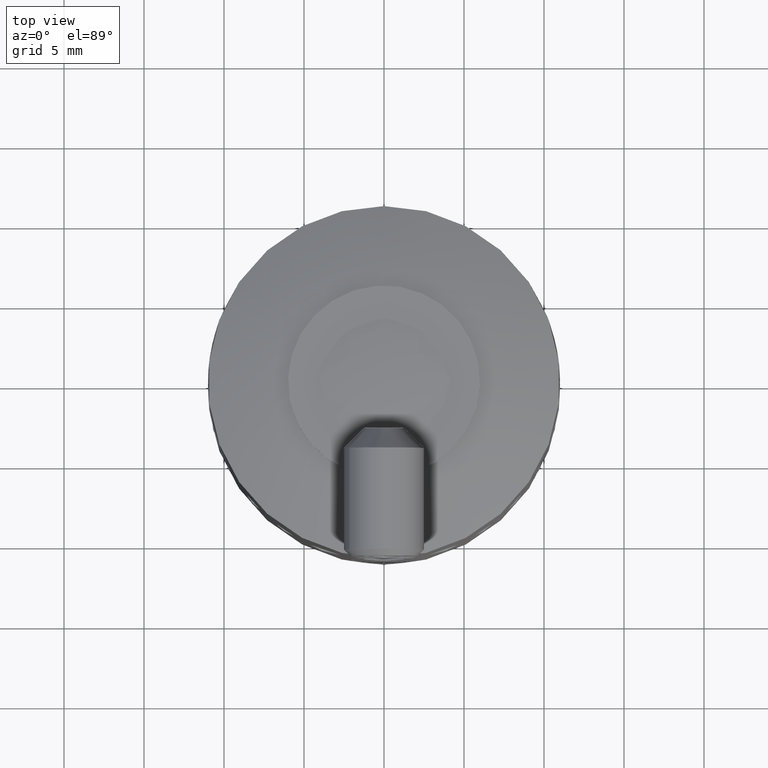
[diagram: clean part render]
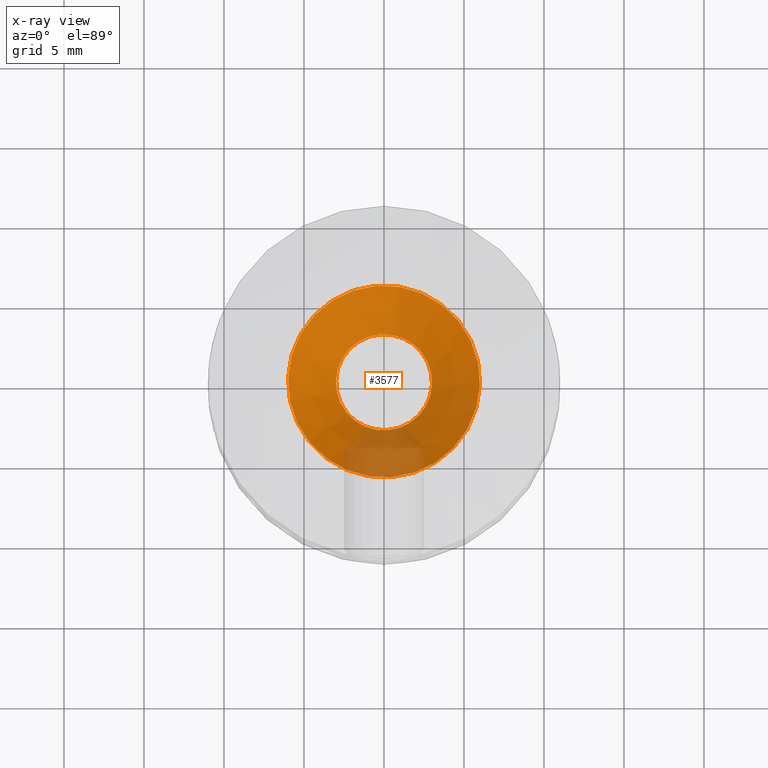
[diagram: x-ray — body ghosted, one internal face saturated and labeled with its STEP entity id]
A machine part, top view, then the same camera in x-ray: the body is ghosted and one INTERNAL B-rep face — a face not visible from any outside direction — is saturated and labeled: STEP entity #3577.
In plain terms, the highlighted conical surface has half-angle 45 deg.
Its self-contained STEP definition (entity closure, byte-faithful):
#59 = DIRECTION ( 'NONE',  ( -0.000000000000000000, 1.224646799147353207E-16, -1.000000000000000000 ) ) ;
#271 = AXIS2_PLACEMENT_3D ( 'NONE', #1312, #59, #1728 ) ;
#343 = FACE_BOUND ( 'NONE', #4227, .T. ) ;
#490 = EDGE_CURVE ( 'NONE', #2321, #2321, #3305, .T. ) ;
#523 = CARTESIAN_POINT ( 'NONE',  ( 0.000000000000000000, 6.000000000000000000, 0.3000000000000043743 ) ) ;
#611 = ORIENTED_EDGE ( 'NONE', *, *, #490, .T. ) ;
#846 = CARTESIAN_POINT ( 'NONE',  ( 0.000000000000000000, -3.673940397442103872E-17, 0.3000000000000035971 ) ) ;
#1067 = FACE_OUTER_BOUND ( 'NONE', #4891, .T. ) ;
#1312 = CARTESIAN_POINT ( 'NONE',  ( 0.000000000000000000, -3.673940397442103872E-17, 0.3000000000000035971 ) ) ;
#1667 = VERTEX_POINT ( 'NONE', #523 ) ;
#1728 = DIRECTION ( 'NONE',  ( 0.000000000000000000, 1.000000000000000000, 1.264902534566421922E-16 ) ) ;
#2296 = AXIS2_PLACEMENT_3D ( 'NONE', #5321, #5360, #5343 ) ;
#2321 = VERTEX_POINT ( 'NONE', #2922 ) ;
#2341 = AXIS2_PLACEMENT_3D ( 'NONE', #846, #3762, #3785 ) ;
#2922 = CARTESIAN_POINT ( 'NONE',  ( 0.000000000000000000, 2.999999999999995559, 3.299999999999997158 ) ) ;
#3305 = CIRCLE ( 'NONE', #2296, 2.999999999999996003 ) ;
#3577 = ADVANCED_FACE ( 'NONE', ( #1067, #343 ), #5234, .T. ) ;
#3762 = DIRECTION ( 'NONE',  ( -0.000000000000000000, 1.224646799147353207E-16, -1.000000000000000000 ) ) ;
#3785 = DIRECTION ( 'NONE',  ( 0.000000000000000000, 1.000000000000000000, 1.264902534566421922E-16 ) ) ;
#4046 = ORIENTED_EDGE ( 'NONE', *, *, #5333, .F. ) ;
#4151 = CIRCLE ( 'NONE', #2341, 6.000000000000000000 ) ;
#4227 = EDGE_LOOP ( 'NONE', ( #611 ) ) ;
#4891 = EDGE_LOOP ( 'NONE', ( #4046 ) ) ;
#5234 = CONICAL_SURFACE ( 'NONE', #271, 6.000000000000000000, 0.7853981633974504994 ) ;
#5321 = CARTESIAN_POINT ( 'NONE',  ( 0.000000000000000000, -4.041334437186261072E-16, 3.299999999999997158 ) ) ;
#5333 = EDGE_CURVE ( 'NONE', #1667, #1667, #4151, .T. ) ;
#5343 = DIRECTION ( 'NONE',  ( 0.000000000000000000, 1.000000000000000000, 1.445602896647341135E-16 ) ) ;
#5360 = DIRECTION ( 'NONE',  ( -0.000000000000000000, 1.224646799147352961E-16, -1.000000000000000000 ) ) ;